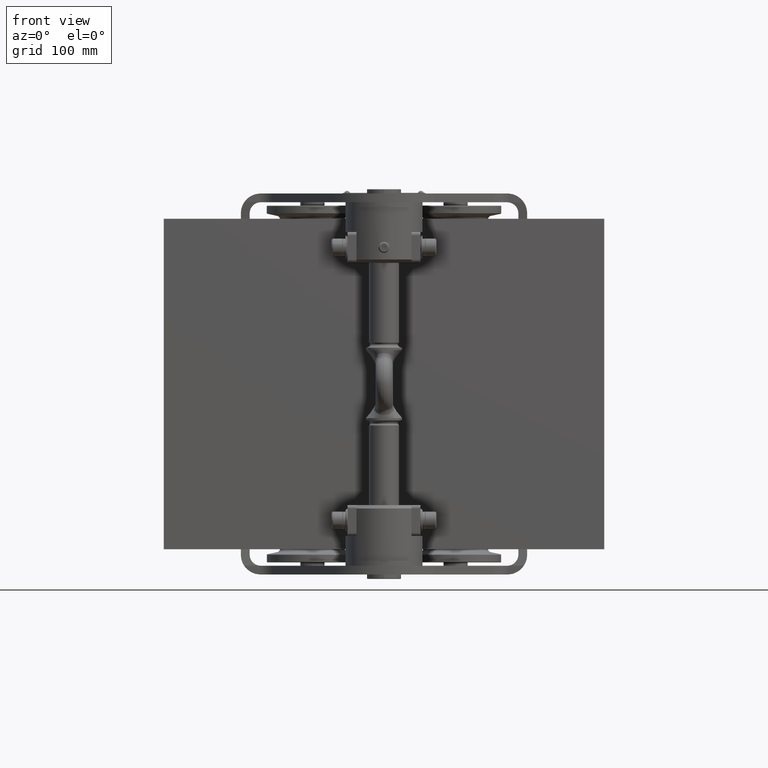
[diagram: clean part render]
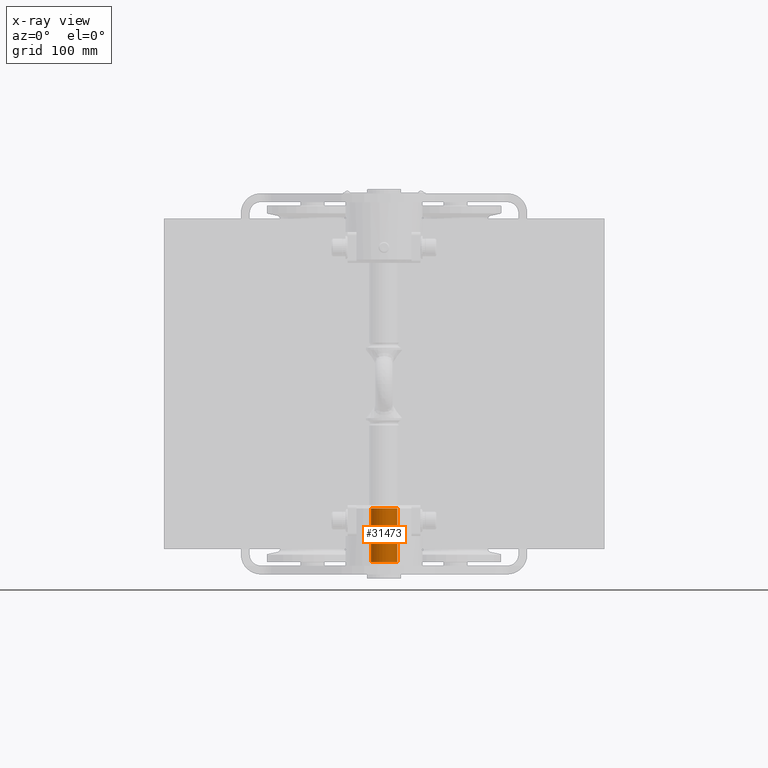
[diagram: x-ray — body ghosted, one internal face saturated and labeled with its STEP entity id]
A machine part, front view, then the same camera in x-ray: the body is ghosted and one INTERNAL B-rep face — a face not visible from any outside direction — is saturated and labeled: STEP entity #31473.
In plain terms, the highlighted cylindrical surface (edge-blend (fillet) strip) has radius 12 mm, axis along (-0, -0, -1).
Its self-contained STEP definition (entity closure, byte-faithful):
#137 = VECTOR ( 'NONE', #45068, 1000.000000000000000 ) ;
#419 = ORIENTED_EDGE ( 'NONE', *, *, #5946, .T. ) ;
#3145 = CARTESIAN_POINT ( 'NONE',  ( 12.00000000000000000, -207.9999999999998600, -161.9999999999999700 ) ) ;
#4016 = EDGE_CURVE ( 'NONE', #34972, #9321, #23724, .T. ) ;
#4499 = CARTESIAN_POINT ( 'NONE',  ( 1.133456445405411500E-014, -207.9999999999998600, -112.9999999999999900 ) ) ;
#5946 = EDGE_CURVE ( 'NONE', #13075, #8951, #39136, .T. ) ;
#7200 = CARTESIAN_POINT ( 'NONE',  ( -11.99999999999998200, -207.9999999999998600, -161.9999999999999700 ) ) ;
#7204 = AXIS2_PLACEMENT_3D ( 'NONE', #11289, #11660, #40274 ) ;
#8519 = CARTESIAN_POINT ( 'NONE',  ( -11.99999999999998000, -207.9999999999998600, -112.9999999999999900 ) ) ;
#8951 = VERTEX_POINT ( 'NONE', #7200 ) ;
#9321 = VERTEX_POINT ( 'NONE', #26689 ) ;
#11289 = CARTESIAN_POINT ( 'NONE',  ( 1.112710113231031700E-014, -207.9999999999998600, -161.9999999999999700 ) ) ;
#11660 = DIRECTION ( 'NONE',  ( -4.233945341710164000E-018, -2.126349141558169100E-017, -1.000000000000000000 ) ) ;
#13075 = VERTEX_POINT ( 'NONE', #3145 ) ;
#13123 = AXIS2_PLACEMENT_3D ( 'NONE', #28375, #44620, #44793 ) ;
#17807 = ORIENTED_EDGE ( 'NONE', *, *, #24173, .F. ) ;
#19890 = EDGE_LOOP ( 'NONE', ( #45407, #47223, #419, #17807 ) ) ;
#19975 = CARTESIAN_POINT ( 'NONE',  ( 12.00000000000000400, -207.9999999999998600, -164.9999999999999700 ) ) ;
#21558 = CYLINDRICAL_SURFACE ( 'NONE', #13123, 11.99999999999999300 ) ;
#23661 = CARTESIAN_POINT ( 'NONE',  ( -11.99999999999998200, -207.9999999999998600, -164.9999999999999700 ) ) ;
#23724 = CIRCLE ( 'NONE', #25339, 11.99999999999999300 ) ;
#24173 = EDGE_CURVE ( 'NONE', #34972, #8951, #36320, .T. ) ;
#25339 = AXIS2_PLACEMENT_3D ( 'NONE', #4499, #49610, #49273 ) ;
#26689 = CARTESIAN_POINT ( 'NONE',  ( 12.00000000000000200, -207.9999999999998600, -112.9999999999999900 ) ) ;
#28375 = CARTESIAN_POINT ( 'NONE',  ( 1.111439929628518600E-014, -207.9999999999998600, -164.9999999999999700 ) ) ;
#29959 = FACE_OUTER_BOUND ( 'NONE', #19890, .T. ) ;
#31473 = ADVANCED_FACE ( 'NONE', ( #29959 ), #21558, .F. ) ;
#33821 = EDGE_CURVE ( 'NONE', #9321, #13075, #52847, .T. ) ;
#34972 = VERTEX_POINT ( 'NONE', #8519 ) ;
#35919 = DIRECTION ( 'NONE',  ( -4.233945341710164000E-018, -2.126349141558169100E-017, -1.000000000000000000 ) ) ;
#36320 = LINE ( 'NONE', #23661, #47249 ) ;
#39136 = CIRCLE ( 'NONE', #7204, 11.99999999999999300 ) ;
#40274 = DIRECTION ( 'NONE',  ( -1.000000000000000000, 0.0000000000000000000, 0.0000000000000000000 ) ) ;
#44620 = DIRECTION ( 'NONE',  ( -4.233945341710164000E-018, -2.126349141558169100E-017, -1.000000000000000000 ) ) ;
#44793 = DIRECTION ( 'NONE',  ( -1.000000000000000000, 0.0000000000000000000, 0.0000000000000000000 ) ) ;
#45068 = DIRECTION ( 'NONE',  ( -4.233945341710164000E-018, -2.126349141558169100E-017, -1.000000000000000000 ) ) ;
#45407 = ORIENTED_EDGE ( 'NONE', *, *, #4016, .T. ) ;
#47223 = ORIENTED_EDGE ( 'NONE', *, *, #33821, .T. ) ;
#47249 = VECTOR ( 'NONE', #35919, 1000.000000000000000 ) ;
#49273 = DIRECTION ( 'NONE',  ( -1.000000000000000000, 0.0000000000000000000, 0.0000000000000000000 ) ) ;
#49610 = DIRECTION ( 'NONE',  ( 4.233945341710164000E-018, 2.126349141558169100E-017, 1.000000000000000000 ) ) ;
#52847 = LINE ( 'NONE', #19975, #137 ) ;